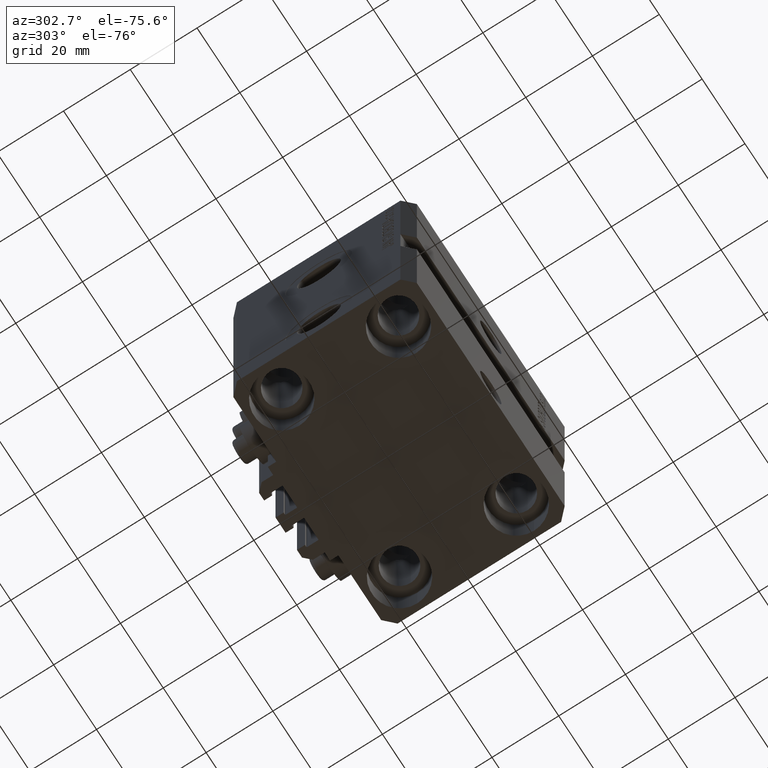
[diagram: clean part render]
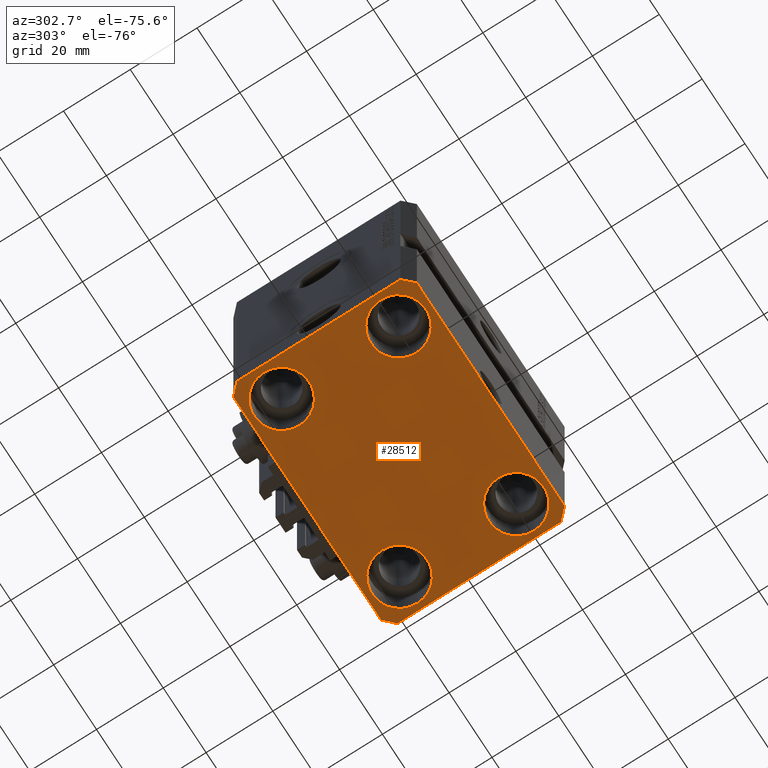
[diagram: same view with one face highlighted and labeled with its STEP entity id]
A machine part, auxiliary view. The second image highlights one B-rep face of the part: STEP entity #28512.
In plain terms, the highlighted planar face has unit normal (0, 0, 1).
Its self-contained STEP definition (entity closure, byte-faithful):
#117 = EDGE_LOOP ( 'NONE', ( #14780, #9186 ) ) ;
#776 = EDGE_CURVE ( 'NONE', #24610, #36704, #13094, .T. ) ;
#844 = EDGE_CURVE ( 'NONE', #44467, #15578, #45370, .T. ) ;
#1234 = VERTEX_POINT ( 'NONE', #39091 ) ;
#1500 = FACE_BOUND ( 'NONE', #117, .T. ) ;
#2790 = ORIENTED_EDGE ( 'NONE', *, *, #42269, .F. ) ;
#3320 = CARTESIAN_POINT ( 'NONE',  ( -27.50000000000000355, -17.50000000000000000, -80.00000000000000000 ) ) ;
#3431 = LINE ( 'NONE', #45803, #3667 ) ;
#3622 = LINE ( 'NONE', #22440, #19947 ) ;
#3667 = VECTOR ( 'NONE', #33782, 1000.000000000000000 ) ;
#3886 = EDGE_CURVE ( 'NONE', #25470, #4362, #37415, .T. ) ;
#4362 = VERTEX_POINT ( 'NONE', #38589 ) ;
#4479 = VERTEX_POINT ( 'NONE', #48105 ) ;
#4625 = EDGE_CURVE ( 'NONE', #23785, #4479, #5838, .T. ) ;
#5091 = LINE ( 'NONE', #24372, #38136 ) ;
#5302 = CARTESIAN_POINT ( 'NONE',  ( -34.49999999999999289, 27.50000000000000000, -80.00000000000000000 ) ) ;
#5532 = DIRECTION ( 'NONE',  ( -0.000000000000000000, -0.000000000000000000, 1.000000000000000000 ) ) ;
#5764 = EDGE_CURVE ( 'NONE', #4362, #25470, #23843, .T. ) ;
#5832 = CARTESIAN_POINT ( 'NONE',  ( 35.74999999999999289, 17.50000000000001066, -80.00000000000000000 ) ) ;
#5838 = LINE ( 'NONE', #42766, #26221 ) ;
#6690 = VERTEX_POINT ( 'NONE', #26923 ) ;
#6740 = AXIS2_PLACEMENT_3D ( 'NONE', #22967, #27720, #46058 ) ;
#7494 = AXIS2_PLACEMENT_3D ( 'NONE', #48467, #21869, #36160 ) ;
#7574 = ORIENTED_EDGE ( 'NONE', *, *, #37700, .T. ) ;
#8312 = CIRCLE ( 'NONE', #6740, 8.250000000000000000 ) ;
#8567 = DIRECTION ( 'NONE',  ( 1.000000000000000000, 0.000000000000000000, 0.000000000000000000 ) ) ;
#9186 = ORIENTED_EDGE ( 'NONE', *, *, #844, .T. ) ;
#9808 = LINE ( 'NONE', #5302, #39652 ) ;
#11114 = EDGE_LOOP ( 'NONE', ( #17004, #18262, #24029, #25535, #34296, #2790, #43093, #30383 ) ) ;
#11824 = AXIS2_PLACEMENT_3D ( 'NONE', #18350, #40691, #29902 ) ;
#12971 = VERTEX_POINT ( 'NONE', #24714 ) ;
#13094 = LINE ( 'NONE', #44462, #39698 ) ;
#13515 = CARTESIAN_POINT ( 'NONE',  ( 35.75000000000000711, -17.50000000000000000, -80.00000000000000000 ) ) ;
#13546 = ORIENTED_EDGE ( 'NONE', *, *, #5764, .T. ) ;
#13565 = VERTEX_POINT ( 'NONE', #42083 ) ;
#14049 = CARTESIAN_POINT ( 'NONE',  ( 0.000000000000000000, 0.000000000000000000, -80.00000000000000000 ) ) ;
#14753 = DIRECTION ( 'NONE',  ( 1.076236605503979380E-14, 1.000000000000000000, 0.000000000000000000 ) ) ;
#14780 = ORIENTED_EDGE ( 'NONE', *, *, #15933, .T. ) ;
#15382 = CARTESIAN_POINT ( 'NONE',  ( -19.25000000000000355, 17.50000000000000000, -80.00000000000000000 ) ) ;
#15578 = VERTEX_POINT ( 'NONE', #40221 ) ;
#15858 = VECTOR ( 'NONE', #14753, 1000.000000000000000 ) ;
#15933 = EDGE_CURVE ( 'NONE', #15578, #44467, #24083, .T. ) ;
#16328 = DIRECTION ( 'NONE',  ( -0.7071067811865471286, -0.7071067811865479058, 0.000000000000000000 ) ) ;
#16849 = CARTESIAN_POINT ( 'NONE',  ( 34.50000000000056843, 27.50000000000000000, -80.00000000000000000 ) ) ;
#16858 = DIRECTION ( 'NONE',  ( 0.7071067811865474617, 0.7071067811865474617, 0.000000000000000000 ) ) ;
#16947 = EDGE_LOOP ( 'NONE', ( #25775, #31241 ) ) ;
#17004 = ORIENTED_EDGE ( 'NONE', *, *, #43596, .F. ) ;
#17207 = EDGE_CURVE ( 'NONE', #35267, #13565, #41807, .T. ) ;
#18262 = ORIENTED_EDGE ( 'NONE', *, *, #23970, .F. ) ;
#18350 = CARTESIAN_POINT ( 'NONE',  ( 27.49999999999999645, 17.50000000000001066, -80.00000000000000000 ) ) ;
#18772 = LINE ( 'NONE', #41361, #15858 ) ;
#18955 = CARTESIAN_POINT ( 'NONE',  ( -34.49999999999998579, -27.49999999999999645, -80.00000000000000000 ) ) ;
#19157 = DIRECTION ( 'NONE',  ( -0.7071067811865356934, 0.7071067811865594521, 0.000000000000000000 ) ) ;
#19947 = VECTOR ( 'NONE', #19157, 1000.000000000000114 ) ;
#20180 = VERTEX_POINT ( 'NONE', #13515 ) ;
#20322 = FACE_OUTER_BOUND ( 'NONE', #11114, .T. ) ;
#21525 = EDGE_CURVE ( 'NONE', #20180, #1234, #8312, .T. ) ;
#21612 = VECTOR ( 'NONE', #25180, 1000.000000000000000 ) ;
#21726 = AXIS2_PLACEMENT_3D ( 'NONE', #14049, #29362, #32616 ) ;
#21869 = DIRECTION ( 'NONE',  ( -0.000000000000000000, -0.000000000000000000, 1.000000000000000000 ) ) ;
#21938 = VERTEX_POINT ( 'NONE', #16849 ) ;
#22440 = CARTESIAN_POINT ( 'NONE',  ( 37.50000000000051870, 24.49999999999995381, -80.00000000000000000 ) ) ;
#22594 = DIRECTION ( 'NONE',  ( 1.000000000000000000, 0.000000000000000000, 0.000000000000000000 ) ) ;
#22967 = CARTESIAN_POINT ( 'NONE',  ( 27.50000000000000355, -17.50000000000000000, -80.00000000000000000 ) ) ;
#23246 = DIRECTION ( 'NONE',  ( 1.000000000000000000, 0.000000000000000000, 0.000000000000000000 ) ) ;
#23785 = VERTEX_POINT ( 'NONE', #48925 ) ;
#23843 = CIRCLE ( 'NONE', #11824, 8.249999999999992895 ) ;
#23970 = EDGE_CURVE ( 'NONE', #12971, #21938, #3622, .T. ) ;
#24029 = ORIENTED_EDGE ( 'NONE', *, *, #48536, .F. ) ;
#24083 = CIRCLE ( 'NONE', #43319, 8.250000000000000000 ) ;
#24372 = CARTESIAN_POINT ( 'NONE',  ( 34.50000000000056843, 27.50000000000000000, -80.00000000000000000 ) ) ;
#24610 = VERTEX_POINT ( 'NONE', #42609 ) ;
#24714 = CARTESIAN_POINT ( 'NONE',  ( 37.50000000000051870, 24.49999999999995381, -80.00000000000000000 ) ) ;
#24817 = PLANE ( 'NONE',  #21726 ) ;
#24823 = DIRECTION ( 'NONE',  ( 1.000000000000000000, 0.000000000000000000, 0.000000000000000000 ) ) ;
#25082 = EDGE_CURVE ( 'NONE', #31445, #24610, #40259, .T. ) ;
#25180 = DIRECTION ( 'NONE',  ( 1.000000000000000000, 0.000000000000000000, 0.000000000000000000 ) ) ;
#25470 = VERTEX_POINT ( 'NONE', #5832 ) ;
#25535 = ORIENTED_EDGE ( 'NONE', *, *, #776, .F. ) ;
#25775 = ORIENTED_EDGE ( 'NONE', *, *, #49493, .T. ) ;
#26221 = VECTOR ( 'NONE', #28647, 1000.000000000000000 ) ;
#26369 = DIRECTION ( 'NONE',  ( -0.000000000000000000, -0.000000000000000000, 1.000000000000000000 ) ) ;
#26923 = CARTESIAN_POINT ( 'NONE',  ( -34.49999999999999289, 27.50000000000000000, -80.00000000000000000 ) ) ;
#27191 = ORIENTED_EDGE ( 'NONE', *, *, #21525, .T. ) ;
#27720 = DIRECTION ( 'NONE',  ( -0.000000000000000000, -0.000000000000000000, 1.000000000000000000 ) ) ;
#28512 = ADVANCED_FACE ( 'NONE', ( #1500, #42896, #39402, #43137, #20322 ), #24817, .F. ) ;
#28625 = AXIS2_PLACEMENT_3D ( 'NONE', #37659, #30623, #22594 ) ;
#28647 = DIRECTION ( 'NONE',  ( 0.000000000000000000, -1.000000000000000000, 0.000000000000000000 ) ) ;
#29134 = CIRCLE ( 'NONE', #7494, 8.250000000000000000 ) ;
#29362 = DIRECTION ( 'NONE',  ( 0.000000000000000000, 0.000000000000000000, 1.000000000000000000 ) ) ;
#29799 = AXIS2_PLACEMENT_3D ( 'NONE', #46091, #41829, #23246 ) ;
#29902 = DIRECTION ( 'NONE',  ( 1.000000000000000000, 0.000000000000000000, 0.000000000000000000 ) ) ;
#30147 = AXIS2_PLACEMENT_3D ( 'NONE', #3320, #26369, #34157 ) ;
#30383 = ORIENTED_EDGE ( 'NONE', *, *, #40388, .F. ) ;
#30623 = DIRECTION ( 'NONE',  ( -0.000000000000000000, -0.000000000000000000, 1.000000000000000000 ) ) ;
#31241 = ORIENTED_EDGE ( 'NONE', *, *, #17207, .T. ) ;
#31445 = VERTEX_POINT ( 'NONE', #18955 ) ;
#32616 = DIRECTION ( 'NONE',  ( 1.000000000000000000, 0.000000000000000000, -0.000000000000000000 ) ) ;
#33782 = DIRECTION ( 'NONE',  ( 0.7071067811865483499, -0.7071067811865466846, 0.000000000000000000 ) ) ;
#34157 = DIRECTION ( 'NONE',  ( 1.000000000000000000, 0.000000000000000000, 0.000000000000000000 ) ) ;
#34296 = ORIENTED_EDGE ( 'NONE', *, *, #25082, .F. ) ;
#34720 = CARTESIAN_POINT ( 'NONE',  ( -19.25000000000000355, -17.50000000000000000, -80.00000000000000000 ) ) ;
#35267 = VERTEX_POINT ( 'NONE', #15382 ) ;
#36160 = DIRECTION ( 'NONE',  ( 1.000000000000000000, 0.000000000000000000, 0.000000000000000000 ) ) ;
#36704 = VERTEX_POINT ( 'NONE', #48281 ) ;
#37415 = CIRCLE ( 'NONE', #28625, 8.249999999999992895 ) ;
#37659 = CARTESIAN_POINT ( 'NONE',  ( 27.49999999999999645, 17.50000000000001066, -80.00000000000000000 ) ) ;
#37700 = EDGE_CURVE ( 'NONE', #1234, #20180, #29134, .T. ) ;
#38136 = VECTOR ( 'NONE', #46985, 1000.000000000000000 ) ;
#38589 = CARTESIAN_POINT ( 'NONE',  ( 19.25000000000000000, 17.50000000000001066, -80.00000000000000000 ) ) ;
#39091 = CARTESIAN_POINT ( 'NONE',  ( 19.25000000000000000, -17.50000000000000000, -80.00000000000000000 ) ) ;
#39402 = FACE_BOUND ( 'NONE', #47069, .T. ) ;
#39652 = VECTOR ( 'NONE', #16328, 1000.000000000000000 ) ;
#39684 = CARTESIAN_POINT ( 'NONE',  ( -27.50000000000000355, 17.50000000000000000, -80.00000000000000000 ) ) ;
#39698 = VECTOR ( 'NONE', #16858, 1000.000000000000114 ) ;
#40221 = CARTESIAN_POINT ( 'NONE',  ( -35.75000000000000711, -17.50000000000000000, -80.00000000000000000 ) ) ;
#40259 = LINE ( 'NONE', #44003, #21612 ) ;
#40301 = ORIENTED_EDGE ( 'NONE', *, *, #3886, .T. ) ;
#40388 = EDGE_CURVE ( 'NONE', #6690, #23785, #9808, .T. ) ;
#40691 = DIRECTION ( 'NONE',  ( -0.000000000000000000, -0.000000000000000000, 1.000000000000000000 ) ) ;
#41361 = CARTESIAN_POINT ( 'NONE',  ( 37.49999999999999289, -24.50000000000000000, -80.00000000000000000 ) ) ;
#41807 = CIRCLE ( 'NONE', #29799, 8.250000000000000000 ) ;
#41829 = DIRECTION ( 'NONE',  ( -0.000000000000000000, -0.000000000000000000, 1.000000000000000000 ) ) ;
#42083 = CARTESIAN_POINT ( 'NONE',  ( -35.75000000000000711, 17.50000000000000000, -80.00000000000000000 ) ) ;
#42269 = EDGE_CURVE ( 'NONE', #4479, #31445, #3431, .T. ) ;
#42609 = CARTESIAN_POINT ( 'NONE',  ( 34.49999999999999289, -27.49999999999999645, -80.00000000000000000 ) ) ;
#42766 = CARTESIAN_POINT ( 'NONE',  ( -37.49999999999999289, 24.50000000000000000, -80.00000000000000000 ) ) ;
#42896 = FACE_BOUND ( 'NONE', #45877, .T. ) ;
#42929 = DIRECTION ( 'NONE',  ( -0.000000000000000000, -0.000000000000000000, 1.000000000000000000 ) ) ;
#43093 = ORIENTED_EDGE ( 'NONE', *, *, #4625, .F. ) ;
#43137 = FACE_BOUND ( 'NONE', #16947, .T. ) ;
#43319 = AXIS2_PLACEMENT_3D ( 'NONE', #43899, #5532, #24823 ) ;
#43596 = EDGE_CURVE ( 'NONE', #21938, #6690, #5091, .T. ) ;
#43899 = CARTESIAN_POINT ( 'NONE',  ( -27.50000000000000355, -17.50000000000000000, -80.00000000000000000 ) ) ;
#43997 = AXIS2_PLACEMENT_3D ( 'NONE', #39684, #42929, #8567 ) ;
#44003 = CARTESIAN_POINT ( 'NONE',  ( -34.49999999999998579, -27.49999999999999645, -80.00000000000000000 ) ) ;
#44462 = CARTESIAN_POINT ( 'NONE',  ( 34.49999999999999289, -27.49999999999999645, -80.00000000000000000 ) ) ;
#44467 = VERTEX_POINT ( 'NONE', #34720 ) ;
#45370 = CIRCLE ( 'NONE', #30147, 8.250000000000000000 ) ;
#45803 = CARTESIAN_POINT ( 'NONE',  ( -37.49999999999999289, -24.50000000000000000, -80.00000000000000000 ) ) ;
#45877 = EDGE_LOOP ( 'NONE', ( #7574, #27191 ) ) ;
#46058 = DIRECTION ( 'NONE',  ( 1.000000000000000000, 0.000000000000000000, 0.000000000000000000 ) ) ;
#46091 = CARTESIAN_POINT ( 'NONE',  ( -27.50000000000000355, 17.50000000000000000, -80.00000000000000000 ) ) ;
#46985 = DIRECTION ( 'NONE',  ( -1.000000000000000000, 0.000000000000000000, 0.000000000000000000 ) ) ;
#47069 = EDGE_LOOP ( 'NONE', ( #13546, #40301 ) ) ;
#48105 = CARTESIAN_POINT ( 'NONE',  ( -37.49999999999999289, -24.50000000000000000, -80.00000000000000000 ) ) ;
#48281 = CARTESIAN_POINT ( 'NONE',  ( 37.49999999999999289, -24.50000000000000000, -80.00000000000000000 ) ) ;
#48467 = CARTESIAN_POINT ( 'NONE',  ( 27.50000000000000355, -17.50000000000000000, -80.00000000000000000 ) ) ;
#48536 = EDGE_CURVE ( 'NONE', #36704, #12971, #18772, .T. ) ;
#48834 = CIRCLE ( 'NONE', #43997, 8.250000000000000000 ) ;
#48925 = CARTESIAN_POINT ( 'NONE',  ( -37.49999999999999289, 24.50000000000000000, -80.00000000000000000 ) ) ;
#49493 = EDGE_CURVE ( 'NONE', #13565, #35267, #48834, .T. ) ;